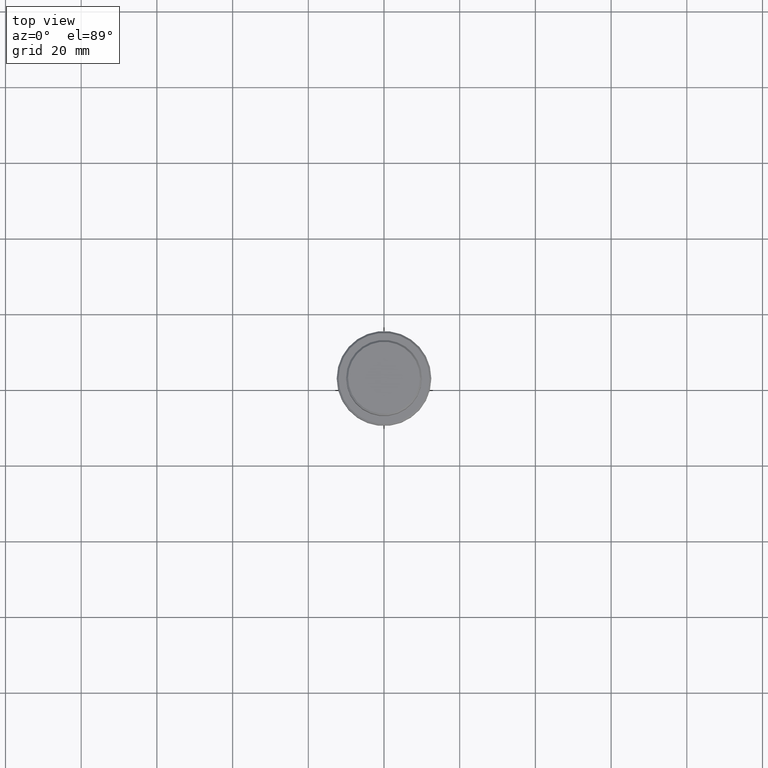
[diagram: clean part render]
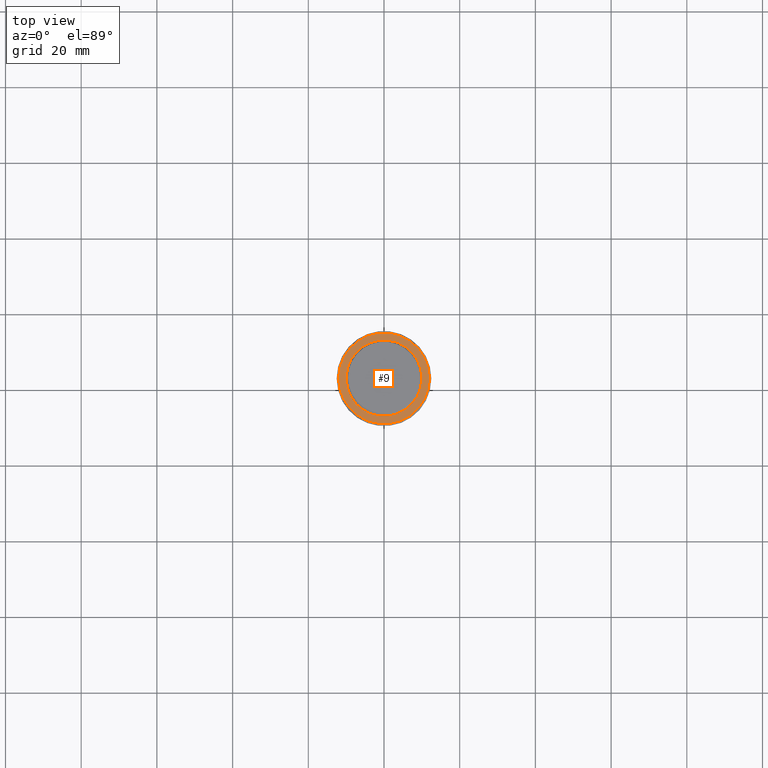
[diagram: same view with one face highlighted and labeled with its STEP entity id]
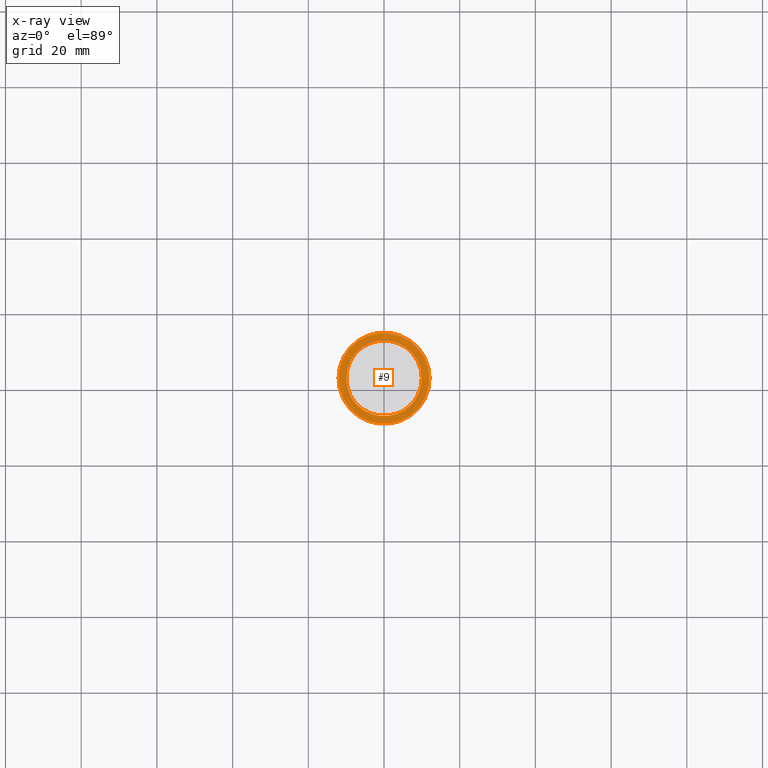
[diagram: x-ray of the same camera — body ghosted, the highlighted face saturated]
A machine part, top view. The second image highlights one B-rep face of the part: STEP entity #9.
The next image is the same camera in x-ray: the body ghosted, the highlighted face saturated — about 0% of this face is hidden behind the body in this view.
In plain terms, the highlighted planar face has unit normal (0, -0, 1).
Its self-contained STEP definition (entity closure, byte-faithful):
#9 = ADVANCED_FACE ( 'NONE', ( #19, #1209 ), #144, .T. ) ;
#19 = FACE_OUTER_BOUND ( 'NONE', #898, .T. ) ;
#39 = DIRECTION ( 'NONE',  ( 0.000000000000000000, -0.000000000000000000, 1.000000000000000000 ) ) ;
#95 = EDGE_CURVE ( 'NONE', #441, #1116, #1035, .T. ) ;
#144 = PLANE ( 'NONE',  #167 ) ;
#167 = AXIS2_PLACEMENT_3D ( 'NONE', #567, #39, #1324 ) ;
#186 = ORIENTED_EDGE ( 'NONE', *, *, #552, .T. ) ;
#209 = CARTESIAN_POINT ( 'NONE',  ( 0.000000000000000000, 0.000000000000000000, -9.000000000000001776 ) ) ;
#215 = AXIS2_PLACEMENT_3D ( 'NONE', #384, #799, #364 ) ;
#235 = EDGE_CURVE ( 'NONE', #1092, #973, #348, .T. ) ;
#260 = DIRECTION ( 'NONE',  ( 1.000000000000000000, 0.000000000000000000, 0.000000000000000000 ) ) ;
#271 = DIRECTION ( 'NONE',  ( -0.000000000000000000, -0.000000000000000000, 1.000000000000000000 ) ) ;
#348 = CIRCLE ( 'NONE', #1374, 9.999999999999994671 ) ;
#364 = DIRECTION ( 'NONE',  ( 1.000000000000000000, 0.000000000000000000, 0.000000000000000000 ) ) ;
#378 = EDGE_LOOP ( 'NONE', ( #528, #1040 ) ) ;
#384 = CARTESIAN_POINT ( 'NONE',  ( 0.000000000000000000, 0.000000000000000000, -9.000000000000001776 ) ) ;
#441 = VERTEX_POINT ( 'NONE', #1082 ) ;
#528 = ORIENTED_EDGE ( 'NONE', *, *, #910, .T. ) ;
#552 = EDGE_CURVE ( 'NONE', #1116, #441, #1183, .T. ) ;
#567 = CARTESIAN_POINT ( 'NONE',  ( 0.000000000000000000, 9.499999999999994671, -9.000000000000001776 ) ) ;
#589 = CARTESIAN_POINT ( 'NONE',  ( 0.000000000000000000, 0.000000000000000000, -9.000000000000001776 ) ) ;
#675 = AXIS2_PLACEMENT_3D ( 'NONE', #794, #1335, #1220 ) ;
#682 = CARTESIAN_POINT ( 'NONE',  ( 9.999999999999994671, 0.000000000000000000, -9.000000000000001776 ) ) ;
#794 = CARTESIAN_POINT ( 'NONE',  ( 0.000000000000000000, 0.000000000000000000, -9.000000000000001776 ) ) ;
#799 = DIRECTION ( 'NONE',  ( -0.000000000000000000, -0.000000000000000000, 1.000000000000000000 ) ) ;
#832 = CIRCLE ( 'NONE', #675, 9.999999999999994671 ) ;
#898 = EDGE_LOOP ( 'NONE', ( #186, #1304 ) ) ;
#910 = EDGE_CURVE ( 'NONE', #973, #1092, #832, .T. ) ;
#952 = DIRECTION ( 'NONE',  ( 1.000000000000000000, 0.000000000000000000, 0.000000000000000000 ) ) ;
#973 = VERTEX_POINT ( 'NONE', #682 ) ;
#1035 = CIRCLE ( 'NONE', #1371, 12.00000000000001066 ) ;
#1040 = ORIENTED_EDGE ( 'NONE', *, *, #235, .T. ) ;
#1082 = CARTESIAN_POINT ( 'NONE',  ( 12.00000000000001066, 1.500192328955508326E-15, -9.000000000000001776 ) ) ;
#1092 = VERTEX_POINT ( 'NONE', #1385 ) ;
#1116 = VERTEX_POINT ( 'NONE', #1167 ) ;
#1167 = CARTESIAN_POINT ( 'NONE',  ( -12.00000000000001066, 0.000000000000000000, -9.000000000000001776 ) ) ;
#1177 = DIRECTION ( 'NONE',  ( 0.000000000000000000, 0.000000000000000000, -1.000000000000000000 ) ) ;
#1183 = CIRCLE ( 'NONE', #215, 12.00000000000001066 ) ;
#1209 = FACE_BOUND ( 'NONE', #378, .T. ) ;
#1220 = DIRECTION ( 'NONE',  ( 1.000000000000000000, 0.000000000000000000, 0.000000000000000000 ) ) ;
#1304 = ORIENTED_EDGE ( 'NONE', *, *, #95, .T. ) ;
#1324 = DIRECTION ( 'NONE',  ( 1.000000000000000000, 0.000000000000000000, 0.000000000000000000 ) ) ;
#1335 = DIRECTION ( 'NONE',  ( 0.000000000000000000, 0.000000000000000000, -1.000000000000000000 ) ) ;
#1371 = AXIS2_PLACEMENT_3D ( 'NONE', #589, #271, #260 ) ;
#1374 = AXIS2_PLACEMENT_3D ( 'NONE', #209, #1177, #952 ) ;
#1385 = CARTESIAN_POINT ( 'NONE',  ( -9.999999999999994671, 1.224646799147352665E-15, -9.000000000000001776 ) ) ;